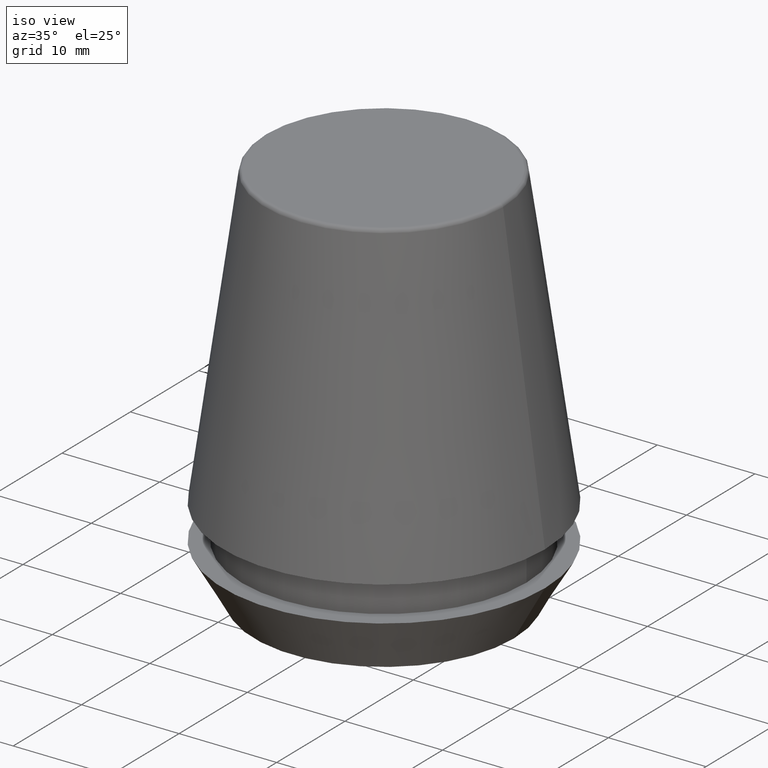
[diagram: clean part render]
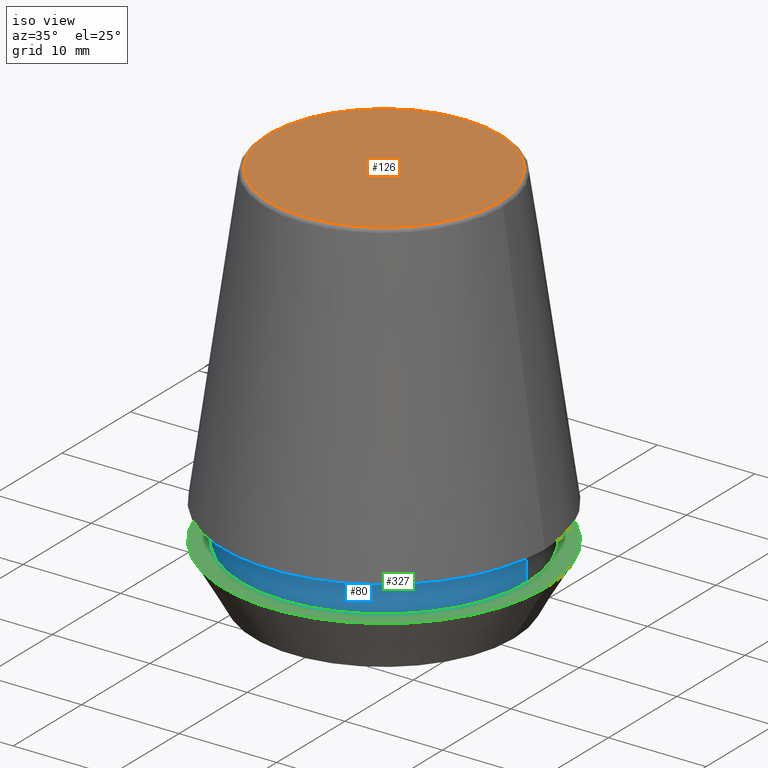
[diagram: same view with three faces highlighted in distinct colors, each labeled with its STEP entity id]
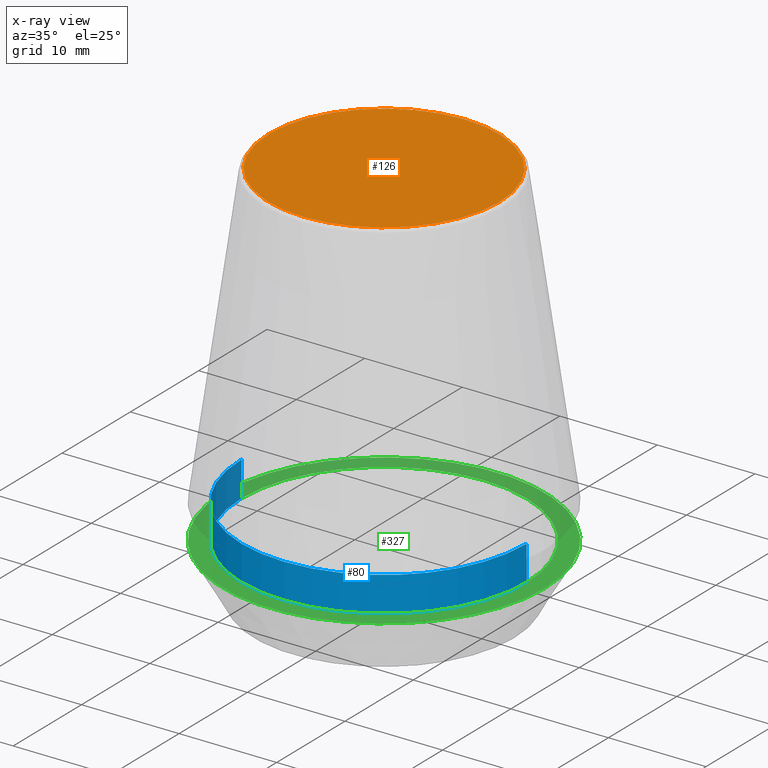
[diagram: x-ray of the same camera — body ghosted, the three highlighted faces saturated]
A machine part, iso view with three faces highlighted in distinct colors.
The next image is the same camera in x-ray (body ghosted, the three faces saturated) — at least one of them is partly hidden behind the body in this view.
Their STEP definitions:

[orange] entity #126 — the highlighted planar face has unit normal (0, 0, -1).
#24 = CARTESIAN_POINT ( 'NONE',  ( 0.0000000000000000000, 0.0000000000000000000, 40.00000000000000700 ) ) ;
#42 = AXIS2_PLACEMENT_3D ( 'NONE', #24, #44, #226 ) ;
#44 = DIRECTION ( 'NONE',  ( -0.0000000000000000000, -0.0000000000000000000, 1.000000000000000000 ) ) ;
#53 = CARTESIAN_POINT ( 'NONE',  ( -11.80989888411031400, 1.470550059081603400E-015, 40.00000000000000700 ) ) ;
#54 = DIRECTION ( 'NONE',  ( -0.0000000000000000000, -0.0000000000000000000, 1.000000000000000000 ) ) ;
#67 = VERTEX_POINT ( 'NONE', #53 ) ;
#85 = DIRECTION ( 'NONE',  ( 1.000000000000000000, 0.0000000000000000000, 0.0000000000000000000 ) ) ;
#89 = AXIS2_PLACEMENT_3D ( 'NONE', #109, #54, #85 ) ;
#100 = EDGE_LOOP ( 'NONE', ( #216, #247 ) ) ;
#109 = CARTESIAN_POINT ( 'NONE',  ( 0.0000000000000000000, 0.0000000000000000000, 40.00000000000000700 ) ) ;
#116 = FACE_OUTER_BOUND ( 'NONE', #100, .T. ) ;
#126 = ADVANCED_FACE ( 'NONE', ( #116 ), #345, .F. ) ;
#130 = VERTEX_POINT ( 'NONE', #165 ) ;
#132 = CARTESIAN_POINT ( 'NONE',  ( 0.0000000000000000000, 11.80989888411031400, 40.00000000000000700 ) ) ;
#165 = CARTESIAN_POINT ( 'NONE',  ( 11.80989888411031400, 0.0000000000000000000, 40.00000000000000700 ) ) ;
#206 = EDGE_CURVE ( 'NONE', #67, #130, #239, .T. ) ;
#216 = ORIENTED_EDGE ( 'NONE', *, *, #378, .T. ) ;
#226 = DIRECTION ( 'NONE',  ( 1.000000000000000000, 0.0000000000000000000, 0.0000000000000000000 ) ) ;
#239 = CIRCLE ( 'NONE', #89, 11.80989888411031400 ) ;
#247 = ORIENTED_EDGE ( 'NONE', *, *, #206, .T. ) ;
#282 = AXIS2_PLACEMENT_3D ( 'NONE', #132, #374, #376 ) ;
#345 = PLANE ( 'NONE',  #282 ) ;
#359 = CIRCLE ( 'NONE', #42, 11.80989888411031400 ) ;
#374 = DIRECTION ( 'NONE',  ( 0.0000000000000000000, 0.0000000000000000000, -1.000000000000000000 ) ) ;
#376 = DIRECTION ( 'NONE',  ( -1.000000000000000000, 0.0000000000000000000, -0.0000000000000000000 ) ) ;
#378 = EDGE_CURVE ( 'NONE', #130, #67, #359, .T. ) ;

[blue] entity #80 — the highlighted cylindrical surface (partial cylindrical patch) has radius 14.6 mm, axis along (-0, -0, 1).
#16 = CARTESIAN_POINT ( 'NONE',  ( 14.60000000000000000, 0.0000000000000000000, 5.500000000000005300 ) ) ;
#20 = DIRECTION ( 'NONE',  ( -0.0000000000000000000, -0.0000000000000000000, 1.000000000000000000 ) ) ;
#22 = AXIS2_PLACEMENT_3D ( 'NONE', #123, #50, #379 ) ;
#29 = CARTESIAN_POINT ( 'NONE',  ( 0.0000000000000000000, 0.0000000000000000000, 9.099999999999997900 ) ) ;
#31 = AXIS2_PLACEMENT_3D ( 'NONE', #29, #177, #198 ) ;
#45 = EDGE_CURVE ( 'NONE', #274, #156, #134, .T. ) ;
#50 = DIRECTION ( 'NONE',  ( -0.0000000000000000000, -0.0000000000000000000, 1.000000000000000000 ) ) ;
#56 = CYLINDRICAL_SURFACE ( 'NONE', #78, 14.60000000000000000 ) ;
#58 = VERTEX_POINT ( 'NONE', #233 ) ;
#63 = LINE ( 'NONE', #84, #214 ) ;
#78 = AXIS2_PLACEMENT_3D ( 'NONE', #191, #20, #107 ) ;
#80 = ADVANCED_FACE ( 'NONE', ( #369 ), #56, .T. ) ;
#84 = CARTESIAN_POINT ( 'NONE',  ( -14.60000000000000000, 1.787984326755135800E-015, 101.8074564848000400 ) ) ;
#107 = DIRECTION ( 'NONE',  ( 1.000000000000000000, 0.0000000000000000000, 0.0000000000000000000 ) ) ;
#123 = CARTESIAN_POINT ( 'NONE',  ( 0.0000000000000000000, 0.0000000000000000000, 5.500000000000005300 ) ) ;
#124 = ORIENTED_EDGE ( 'NONE', *, *, #309, .F. ) ;
#134 = CIRCLE ( 'NONE', #22, 14.60000000000000000 ) ;
#144 = CARTESIAN_POINT ( 'NONE',  ( -14.60000000000000000, 1.787984326755135800E-015, 9.099999999999997900 ) ) ;
#151 = ORIENTED_EDGE ( 'NONE', *, *, #45, .T. ) ;
#152 = ORIENTED_EDGE ( 'NONE', *, *, #217, .F. ) ;
#156 = VERTEX_POINT ( 'NONE', #16 ) ;
#177 = DIRECTION ( 'NONE',  ( -0.0000000000000000000, -0.0000000000000000000, 1.000000000000000000 ) ) ;
#185 = VECTOR ( 'NONE', #338, 1000.000000000000000 ) ;
#191 = CARTESIAN_POINT ( 'NONE',  ( 0.0000000000000000000, 0.0000000000000000000, 101.8074564848000400 ) ) ;
#197 = CARTESIAN_POINT ( 'NONE',  ( -14.60000000000000000, 1.787984326755135800E-015, 5.500000000000005300 ) ) ;
#198 = DIRECTION ( 'NONE',  ( 1.000000000000000000, 0.0000000000000000000, 0.0000000000000000000 ) ) ;
#214 = VECTOR ( 'NONE', #370, 1000.000000000000000 ) ;
#217 = EDGE_CURVE ( 'NONE', #274, #315, #63, .T. ) ;
#233 = CARTESIAN_POINT ( 'NONE',  ( 14.60000000000000000, 0.0000000000000000000, 9.099999999999997900 ) ) ;
#245 = LINE ( 'NONE', #343, #185 ) ;
#274 = VERTEX_POINT ( 'NONE', #197 ) ;
#303 = CIRCLE ( 'NONE', #31, 14.60000000000000000 ) ;
#309 = EDGE_CURVE ( 'NONE', #315, #58, #303, .T. ) ;
#311 = ORIENTED_EDGE ( 'NONE', *, *, #382, .T. ) ;
#315 = VERTEX_POINT ( 'NONE', #144 ) ;
#328 = EDGE_LOOP ( 'NONE', ( #152, #151, #311, #124 ) ) ;
#338 = DIRECTION ( 'NONE',  ( -0.0000000000000000000, -0.0000000000000000000, 1.000000000000000000 ) ) ;
#343 = CARTESIAN_POINT ( 'NONE',  ( 14.60000000000000000, 0.0000000000000000000, 101.8074564848000400 ) ) ;
#369 = FACE_OUTER_BOUND ( 'NONE', #328, .T. ) ;
#370 = DIRECTION ( 'NONE',  ( -0.0000000000000000000, -0.0000000000000000000, 1.000000000000000000 ) ) ;
#379 = DIRECTION ( 'NONE',  ( 1.000000000000000000, 0.0000000000000000000, 0.0000000000000000000 ) ) ;
#382 = EDGE_CURVE ( 'NONE', #156, #58, #245, .T. ) ;

[green] entity #327 — the highlighted planar face has unit normal (0, 0, -1).
#2 = DIRECTION ( 'NONE',  ( -0.0000000000000000000, -0.0000000000000000000, 1.000000000000000000 ) ) ;
#13 = DIRECTION ( 'NONE',  ( 1.000000000000000000, 0.0000000000000000000, 0.0000000000000000000 ) ) ;
#16 = CARTESIAN_POINT ( 'NONE',  ( 14.60000000000000000, 0.0000000000000000000, 5.500000000000005300 ) ) ;
#22 = AXIS2_PLACEMENT_3D ( 'NONE', #123, #50, #379 ) ;
#45 = EDGE_CURVE ( 'NONE', #274, #156, #134, .T. ) ;
#50 = DIRECTION ( 'NONE',  ( -0.0000000000000000000, -0.0000000000000000000, 1.000000000000000000 ) ) ;
#51 = AXIS2_PLACEMENT_3D ( 'NONE', #218, #2, #155 ) ;
#76 = EDGE_LOOP ( 'NONE', ( #211, #252 ) ) ;
#88 = DIRECTION ( 'NONE',  ( 0.0000000000000000000, 0.0000000000000000000, -1.000000000000000000 ) ) ;
#99 = AXIS2_PLACEMENT_3D ( 'NONE', #194, #348, #261 ) ;
#113 = CARTESIAN_POINT ( 'NONE',  ( -16.50000000000000000, 2.020667218593133100E-015, 5.500000000000005300 ) ) ;
#117 = ORIENTED_EDGE ( 'NONE', *, *, #354, .F. ) ;
#123 = CARTESIAN_POINT ( 'NONE',  ( 0.0000000000000000000, 0.0000000000000000000, 5.500000000000005300 ) ) ;
#134 = CIRCLE ( 'NONE', #22, 14.60000000000000000 ) ;
#141 = EDGE_LOOP ( 'NONE', ( #117, #279 ) ) ;
#155 = DIRECTION ( 'NONE',  ( 1.000000000000000000, 0.0000000000000000000, 0.0000000000000000000 ) ) ;
#156 = VERTEX_POINT ( 'NONE', #16 ) ;
#166 = VERTEX_POINT ( 'NONE', #113 ) ;
#168 = CIRCLE ( 'NONE', #99, 16.50000000000000000 ) ;
#174 = CARTESIAN_POINT ( 'NONE',  ( 16.50000000000000000, 0.0000000000000000000, 5.500000000000005300 ) ) ;
#188 = FACE_OUTER_BOUND ( 'NONE', #76, .T. ) ;
#194 = CARTESIAN_POINT ( 'NONE',  ( 0.0000000000000000000, 0.0000000000000000000, 5.500000000000005300 ) ) ;
#197 = CARTESIAN_POINT ( 'NONE',  ( -14.60000000000000000, 1.787984326755135800E-015, 5.500000000000005300 ) ) ;
#200 = CIRCLE ( 'NONE', #302, 14.60000000000000000 ) ;
#211 = ORIENTED_EDGE ( 'NONE', *, *, #340, .T. ) ;
#213 = EDGE_CURVE ( 'NONE', #166, #310, #168, .T. ) ;
#218 = CARTESIAN_POINT ( 'NONE',  ( 0.0000000000000000000, 0.0000000000000000000, 5.500000000000005300 ) ) ;
#232 = DIRECTION ( 'NONE',  ( -1.000000000000000000, 0.0000000000000000000, -0.0000000000000000000 ) ) ;
#249 = AXIS2_PLACEMENT_3D ( 'NONE', #323, #88, #232 ) ;
#252 = ORIENTED_EDGE ( 'NONE', *, *, #213, .T. ) ;
#261 = DIRECTION ( 'NONE',  ( 1.000000000000000000, 0.0000000000000000000, 0.0000000000000000000 ) ) ;
#271 = FACE_BOUND ( 'NONE', #141, .T. ) ;
#274 = VERTEX_POINT ( 'NONE', #197 ) ;
#279 = ORIENTED_EDGE ( 'NONE', *, *, #45, .F. ) ;
#302 = AXIS2_PLACEMENT_3D ( 'NONE', #337, #371, #13 ) ;
#310 = VERTEX_POINT ( 'NONE', #174 ) ;
#323 = CARTESIAN_POINT ( 'NONE',  ( 0.0000000000000000000, 16.50000000000000000, 5.500000000000002700 ) ) ;
#327 = ADVANCED_FACE ( 'NONE', ( #271, #188 ), #356, .F. ) ;
#337 = CARTESIAN_POINT ( 'NONE',  ( 0.0000000000000000000, 0.0000000000000000000, 5.500000000000005300 ) ) ;
#340 = EDGE_CURVE ( 'NONE', #310, #166, #381, .T. ) ;
#348 = DIRECTION ( 'NONE',  ( -0.0000000000000000000, -0.0000000000000000000, 1.000000000000000000 ) ) ;
#354 = EDGE_CURVE ( 'NONE', #156, #274, #200, .T. ) ;
#356 = PLANE ( 'NONE',  #249 ) ;
#371 = DIRECTION ( 'NONE',  ( -0.0000000000000000000, -0.0000000000000000000, 1.000000000000000000 ) ) ;
#379 = DIRECTION ( 'NONE',  ( 1.000000000000000000, 0.0000000000000000000, 0.0000000000000000000 ) ) ;
#381 = CIRCLE ( 'NONE', #51, 16.50000000000000000 ) ;